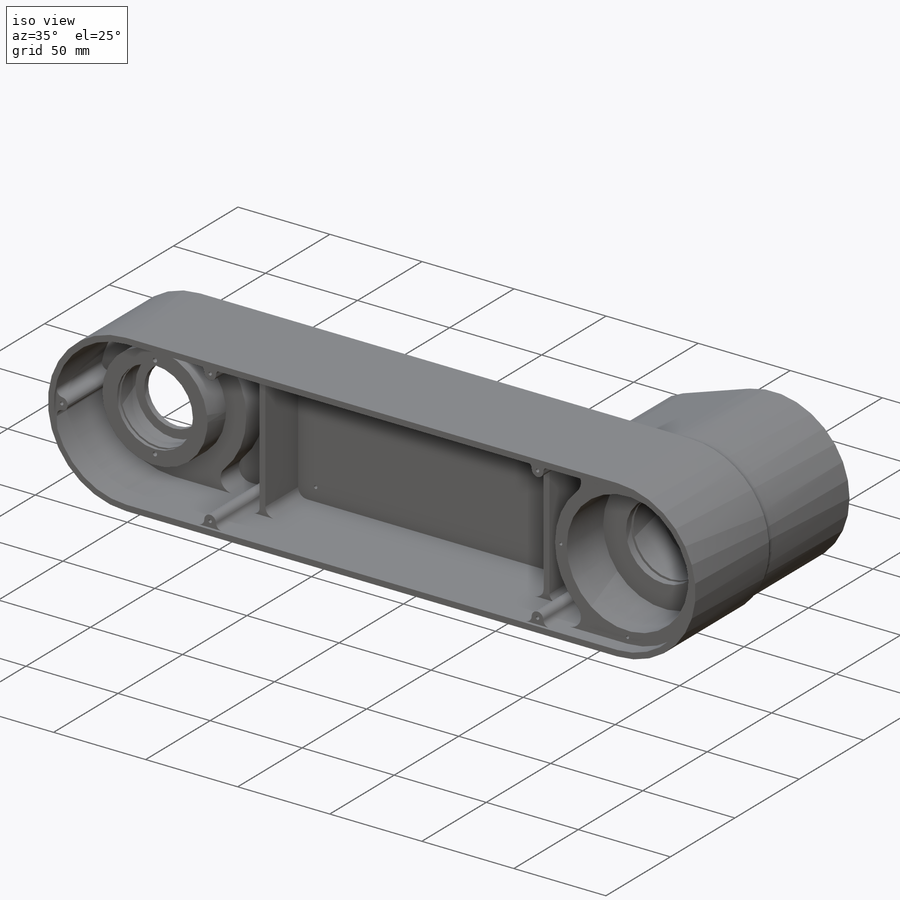
[diagram: iso view]
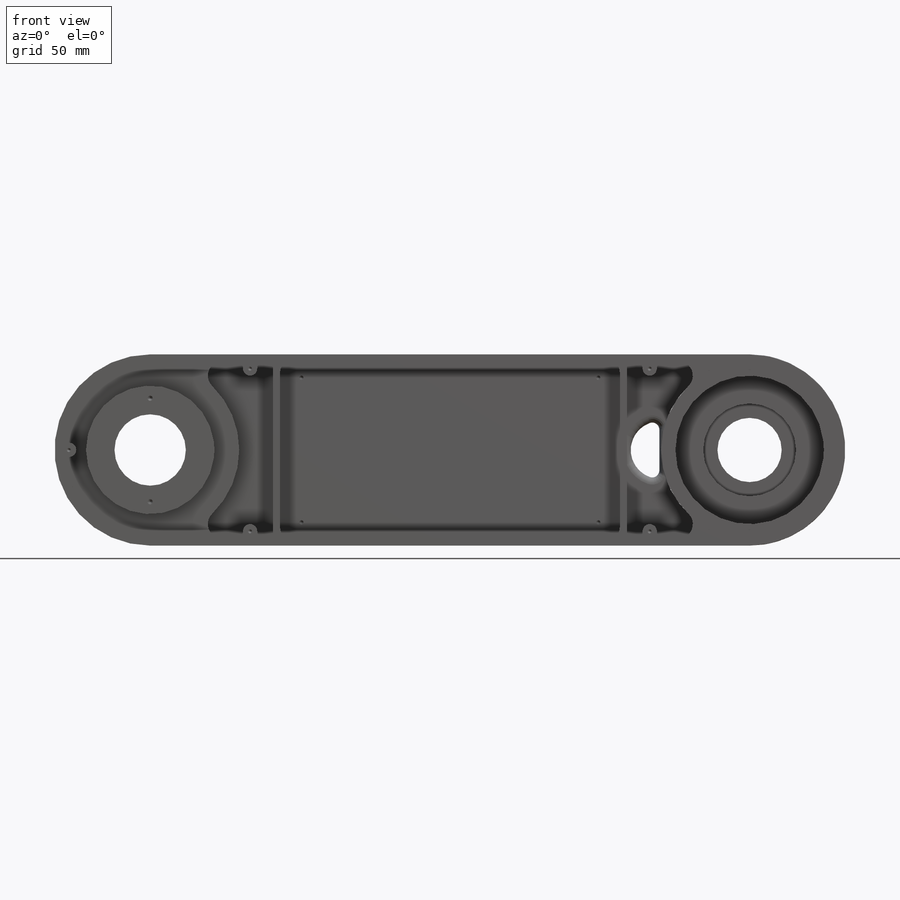
[diagram: front view]
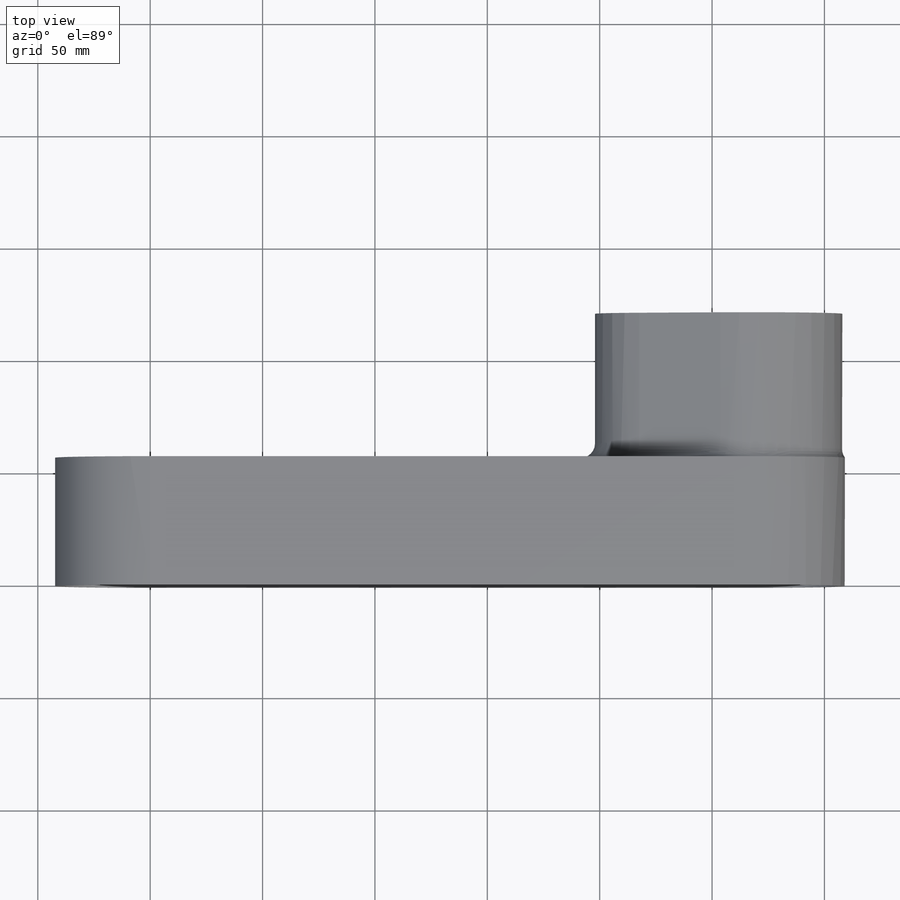
[diagram: top view]
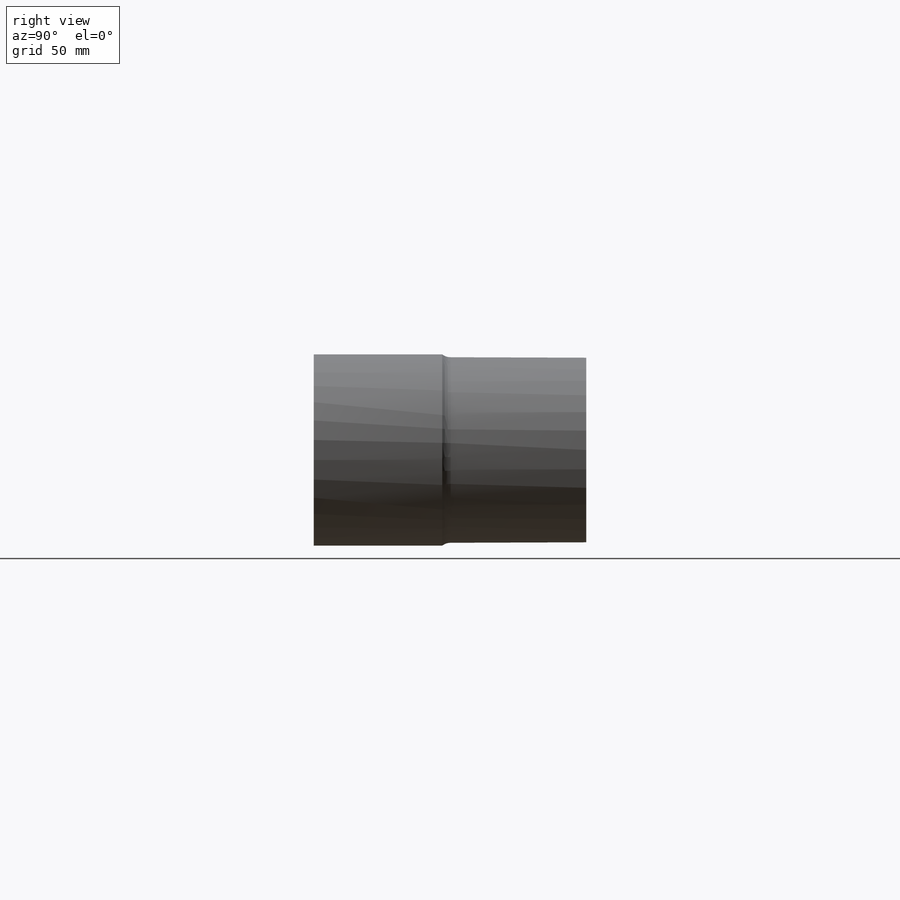
[diagram: right view]
SOLIDWORKS PART (.sldprt)
format: sldprt  version: not decoded by parser v0  size: 1,187,840 bytes
history: native  units: mm
features: sketch x36, thread x21, extrude x16, fillet x12, cut_extrude x8, plane x7, hole x6, material x1 (+12 scaffold rows collapsed)
feature tree (119):
  scaffold x12  (default folders/planes/origin — collapsed)
  material  "Material <not specified>"
  sketch  "Sketch1"  dims[D1=85.09mm D2=266.7mm D3=3.175mm]
  extrude  "Boss-Extrude1"  Depth=50.8mm
  extrude  "Boss-Extrude2"  [1 undecoded]
  sketch  "Sketch1<2>"  dims[D1=6.35mm]
  plane  "Plane1"
  plane  "Plane2"
  sketch  "Sketch3"  dims[D1=76.2mm]
  cut_extrude  "Cut-Extrude1"  Depth=5.08mm
  sketch  "Sketch4"  dims[D1=63.5mm]
  cut_extrude  "Cut-Extrude2"  [1 undecoded]
  plane  "Plane3"
  sketch  "Sketch15"  dims[D1=63.5mm D2=0.254mm]
  extrude  "Boss-Extrude6"  Depth=11.097514mm
  sketch  "Sketch5"  dims[c1.D1=76.2mm c1.D2=82.55mm c2.D1=~8.985008mm c2.D3=266.7mm c2.D4=85.09mm c2.D5=38.1mm c3.D1=266.7mm c3.D6=3.175mm]
  extrude  "Boss-Extrude3"  [1 undecoded]
  extrude  "Boss-Extrude4"  [1 undecoded]
  sketch  "Sketch5<2>"
  plane  "Plane4"
  extrude  "Axis5"  [1 undecoded]
  sketch  "Sketch20"  dims[c1.D1=63.5mm c1.D2=76.2mm c2.D1=6.35mm]
  extrude  "Boss-Extrude9"  Depth=42.8625mm
  extrude  "Boss-Extrude10"  [1 undecoded]
  sketch  "Sketch20<2>"  dims[D1=14.59mm]
  sketch  "Sketch23"  dims[D1=41.275mm]
  cut_extrude  "Cut-Extrude6"  Depth=28.575mm
  sketch  "Sketch24"  dims[D1=43.815mm]
  cut_extrude  "Cut-Extrude7"  Depth=1.7272mm
  sketch  "Sketch8"  dims[D1=28.575mm]
  cut_extrude  "Cut-Extrude3"  [1 undecoded]
  extrude  "Axis2"  [1 undecoded]
  extrude  "Axis3"  [1 undecoded]
  extrude  "Axis4"  [1 undecoded]
  sketch  "Sketch9"  dims[c1.D1=78.74mm c1.D2=25.4mm c1.D3=50.8mm c1.D4=138.43mm c1.D5=25.4mm c2.D3=3.175mm c2.D6=32.1818mm c2.D7=3.175mm]
  sketch  "Sketch17"  dims[D1=31.75mm]
  extrude  "Boss-Extrude7"  Depth=3.175mm
  sketch  "Sketch18"  dims[D1=41.275mm D2=3.175mm]
  extrude  "Boss-Extrude8"  Depth=14.2875mm
  plane  "Plane7"
  sketch  "Sketch19"  dims[D1=41.275mm D2=43.18mm]
  cut_extrude  "Cut-Extrude5"  Depth=1.7272mm
  fillet  "Fillet2"  Radius=6.35mm
  sketch  "Sketch25"  dims[D1=1.5875mm D2=36.195mm D3=4.0]
  cut_extrude  "Cut-Extrude8"  Depth=12.7mm
  sketch  "Sketch27"  dims[D1=46.0248mm]
  hole  "#4-40 Tapped Hole1"  Diameter=2.2606mm Depth=8.255mm
  sketch  "Sketch29"
  sketch  "Sketch28"  dims[hole-wizard template sketch: 50 standard entries collapsed; hole parameters above]
  thread  "Hole Thread16"  Diameter=6.35mm  [1 undecoded]
  thread  "Hole Thread17"  Diameter=6.35mm  [1 undecoded]
  sketch  "Sketch30"  dims[D1=46.0248mm]
  hole  "#4-40 Tapped Hole2"  Diameter=2.2606mm Depth=8.255mm
  sketch  "Sketch32"
  sketch  "Sketch31"  dims[hole-wizard template sketch: 50 standard entries collapsed; hole parameters above]
  thread  "Hole Thread18"  Diameter=6.35mm  [1 undecoded]
  thread  "Hole Thread19"  Diameter=6.35mm  [1 undecoded]
  fillet  "Fillet3"  Radius=6.35mm
  sketch  "Sketch33"  dims[c1.D1=6.35mm c1.D2=6.35mm c1.D3=44.45mm c1.D4=44.45mm c1.D5=6.35mm c1.D6=6.35mm c1.D7=6.35mm c1.D8=6.35mm c1.D9=3.175mm c2.D4=44.45mm]
  extrude  "Boss-Extrude11"  Depth=1.5875mm
  fillet  "Fillet4"  Radius=3.175mm
  fillet  "Fillet5"  Radius=3.175mm
  plane  "Plane8"
  hole  "#2-56 Tapped Hole3"  Diameter=1.778mm Depth=12.7mm
  sketch  "Sketch37"
  sketch  "Sketch36"  dims[hole-wizard template sketch: 50 standard entries collapsed; hole parameters above]
  thread  "Hole Thread20"  Diameter=11.43mm  [1 undecoded]
  thread  "Hole Thread21"  Diameter=11.43mm  [1 undecoded]
  thread  "Hole Thread22"  Diameter=11.43mm  [1 undecoded]
  thread  "Hole Thread23"  Diameter=11.43mm  [1 undecoded]
  thread  "Hole Thread24"  Diameter=11.43mm  [1 undecoded]
  sketch  "Sketch38"  dims[c1.D1=15.875mm c1.D3=~11.265235mm c2.D3=180.0deg c2.D2=12.7mm]
  cut_extrude  "Cut-Extrude9"  [1 undecoded]
  fillet  "Fillet6"  Radius=3.175mm
  fillet  "Fillet7"  Radius=3.175mm
  fillet  "Fillet8"  Radius=6.35mm
  sketch  "Sketch39"  dims[D1=68.58mm]
  hole  "#8-32 Tapped Hole1"  Diameter=3.4544mm Depth=12.366514mm
  sketch  "Sketch41"
  sketch  "Sketch40"  dims[hole-wizard template sketch: 47 standard entries collapsed; hole parameters kept: c15.Tap Drill Depth=~12.366514mm c15.D3=~14.816244mm c15.Drill Angle=118.0deg]
  thread  "Hole Thread25"  Diameter=10.16mm  [1 undecoded]
  thread  "Hole Thread26"  Diameter=10.16mm  [1 undecoded]
  thread  "Hole Thread27"  Diameter=10.16mm  [1 undecoded]
  thread  "Hole Thread28"  Diameter=10.16mm  [1 undecoded]
  sketch  "Sketch42"  dims[c1.D1=6.35mm c1.D2=6.35mm c1.D3=3.175mm c1.D4=6.35mm c1.D5=6.35mm c1.D6=25.4mm c1.D7=6.35mm c1.D8=6.35mm c1.D9=3.175mm c2.D6=25.4mm]
  extrude  "Boss-Extrude12"  Depth=1.5875mm
  fillet  "Fillet9"  Radius=3.175mm
  fillet  "Fillet10"  Radius=3.175mm
  plane  "Plane9"
  hole  "#2-56 Tapped Hole4"  Diameter=1.778mm Depth=7.874mm
  sketch  "Sketch46"
  sketch  "Sketch45"  dims[hole-wizard template sketch: 50 standard entries collapsed; hole parameters above]
  thread  "Hole Thread29"  Diameter=6.35mm  [1 undecoded]
  thread  "Hole Thread30"  Diameter=6.35mm  [1 undecoded]
  thread  "Hole Thread31"  Diameter=6.35mm  [1 undecoded]
  thread  "Hole Thread32"  Diameter=6.35mm  [1 undecoded]
  hole  "#2-56 Tapped Hole5"  Diameter=1.778mm Depth=3.175mm
  sketch  "Sketch48"
  sketch  "Sketch47"  dims[hole-wizard template sketch: 50 standard entries collapsed; hole parameters above]
  thread  "Hole Thread33"  Diameter=3.175mm  [1 undecoded]
  thread  "Hole Thread34"  Diameter=3.175mm  [1 undecoded]
  thread  "Hole Thread35"  Diameter=3.175mm  [1 undecoded]
  thread  "Hole Thread36"  Diameter=3.175mm  [1 undecoded]
  sketch  "Sketch49"  dims[D1=3.175mm D2=9.525mm D3=3.175mm D4=9.525mm]
  extrude  "Boss-Extrude13"  Depth=25.4mm
  fillet  "Fillet11"  Radius=3.175mm
  fillet  "Fillet13"  Radius=3.175mm
  fillet  "Fillet14"  Radius=4.7625mm
decode coverage: 81 of 99 modeling features carry decoded parameters
note: ~ marks probable driven/reference dimensions
note: 32 parameter values undecoded
summary: no parameter record found for 11 features; Diameter pulled from absorbed wizard sketch
note: suppression state not decoded; provenance and decode notes live in map.json
